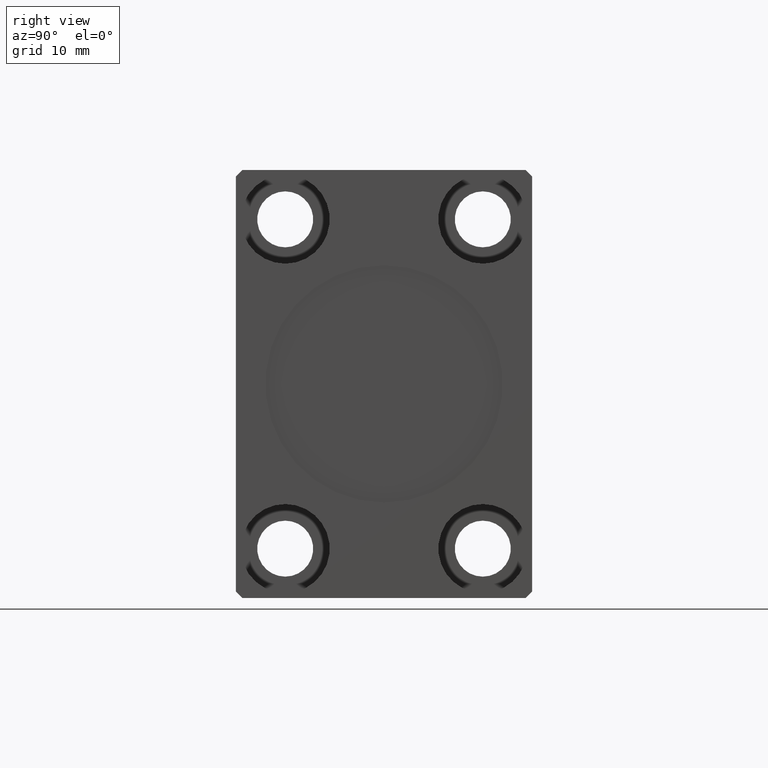
[diagram: clean part render]
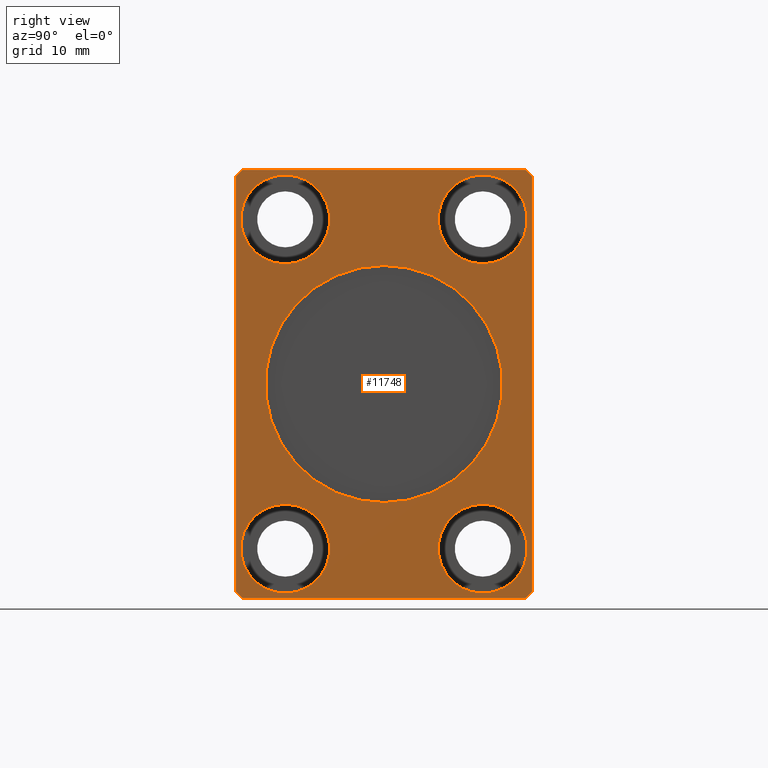
[diagram: same view with one face highlighted and labeled with its STEP entity id]
A machine part, right view. The second image highlights one B-rep face of the part: STEP entity #11748.
In plain terms, the highlighted planar face has unit normal (1, 0, 0).
Its self-contained STEP definition (entity closure, byte-faithful):
#8 = DIRECTION ( 'NONE',  ( -1.000000000000000000, -0.000000000000000000, -0.000000000000000000 ) ) ;
#1056 = CARTESIAN_POINT ( 'NONE',  ( 78.00000000000000000, -15.00000000000000000, -25.00000000000000000 ) ) ;
#1214 = ORIENTED_EDGE ( 'NONE', *, *, #21055, .F. ) ;
#1355 = EDGE_CURVE ( 'NONE', #30255, #4221, #12277, .T. ) ;
#1520 = CARTESIAN_POINT ( 'NONE',  ( 78.00000000000000000, 15.00000000000000000, 25.00000000000000000 ) ) ;
#1843 = CARTESIAN_POINT ( 'NONE',  ( 78.00000000000000000, -22.50000000000001421, -31.50000000000000711 ) ) ;
#1972 = AXIS2_PLACEMENT_3D ( 'NONE', #1056, #37010, #12196 ) ;
#2016 = LINE ( 'NONE', #22474, #16498 ) ;
#2454 = DIRECTION ( 'NONE',  ( 0.000000000000000000, 0.000000000000000000, 1.000000000000000000 ) ) ;
#2794 = EDGE_CURVE ( 'NONE', #6442, #8635, #35507, .T. ) ;
#3002 = VERTEX_POINT ( 'NONE', #11138 ) ;
#3448 = DIRECTION ( 'NONE',  ( 0.000000000000000000, 0.000000000000000000, -1.000000000000000000 ) ) ;
#4097 = ORIENTED_EDGE ( 'NONE', *, *, #17590, .T. ) ;
#4221 = VERTEX_POINT ( 'NONE', #14498 ) ;
#4805 = CIRCLE ( 'NONE', #10285, 6.749999999999992006 ) ;
#4833 = CARTESIAN_POINT ( 'NONE',  ( 78.00000000000000000, 15.00000000000000000, -25.00000000000000000 ) ) ;
#5067 = ORIENTED_EDGE ( 'NONE', *, *, #34118, .T. ) ;
#5296 = DIRECTION ( 'NONE',  ( 0.000000000000000000, -0.7071067811865474617, 0.7071067811865474617 ) ) ;
#6254 = DIRECTION ( 'NONE',  ( 0.000000000000000000, 5.507058653894625853E-17, -1.000000000000000000 ) ) ;
#6317 = CARTESIAN_POINT ( 'NONE',  ( 78.00000000000000000, -15.00000000000000000, 31.75000000000000711 ) ) ;
#6396 = EDGE_CURVE ( 'NONE', #8635, #9879, #34340, .T. ) ;
#6442 = VERTEX_POINT ( 'NONE', #7637 ) ;
#6882 = ORIENTED_EDGE ( 'NONE', *, *, #10151, .T. ) ;
#6982 = VERTEX_POINT ( 'NONE', #22987 ) ;
#7270 = CIRCLE ( 'NONE', #16231, 6.750000000000006217 ) ;
#7441 = VECTOR ( 'NONE', #38317, 1000.000000000000114 ) ;
#7637 = CARTESIAN_POINT ( 'NONE',  ( 78.00000000000000000, 21.49999999999999645, -32.50000000000000000 ) ) ;
#7774 = CIRCLE ( 'NONE', #11216, 6.749999999999999112 ) ;
#8095 = EDGE_CURVE ( 'NONE', #6982, #23971, #4805, .T. ) ;
#8382 = DIRECTION ( 'NONE',  ( 0.000000000000000000, 0.7071067811865451302, -0.7071067811865500152 ) ) ;
#8635 = VERTEX_POINT ( 'NONE', #12827 ) ;
#8746 = EDGE_LOOP ( 'NONE', ( #23442, #25642 ) ) ;
#8800 = CARTESIAN_POINT ( 'NONE',  ( 78.00000000000000000, -22.50000000000001421, -31.50000000000000711 ) ) ;
#9065 = ORIENTED_EDGE ( 'NONE', *, *, #38647, .F. ) ;
#9879 = VERTEX_POINT ( 'NONE', #31079 ) ;
#10151 = EDGE_CURVE ( 'NONE', #15960, #40841, #38598, .T. ) ;
#10263 = VERTEX_POINT ( 'NONE', #38547 ) ;
#10285 = AXIS2_PLACEMENT_3D ( 'NONE', #4833, #25494, #2454 ) ;
#10360 = ORIENTED_EDGE ( 'NONE', *, *, #39578, .T. ) ;
#10574 = DIRECTION ( 'NONE',  ( 0.000000000000000000, 0.000000000000000000, -1.000000000000000000 ) ) ;
#11138 = CARTESIAN_POINT ( 'NONE',  ( 78.00000000000000000, -15.00000000000000000, -18.25000000000000355 ) ) ;
#11216 = AXIS2_PLACEMENT_3D ( 'NONE', #13116, #23019, #36153 ) ;
#11543 = FACE_BOUND ( 'NONE', #19494, .T. ) ;
#11748 = ADVANCED_FACE ( 'NONE', ( #41047, #11543, #37164, #37807, #21456, #18232 ), #31365, .T. ) ;
#12196 = DIRECTION ( 'NONE',  ( 0.000000000000000000, 0.000000000000000000, -1.000000000000000000 ) ) ;
#12277 = LINE ( 'NONE', #35319, #27218 ) ;
#12733 = CARTESIAN_POINT ( 'NONE',  ( 78.00000000000000000, 15.00000000000000000, 25.00000000000000000 ) ) ;
#12827 = CARTESIAN_POINT ( 'NONE',  ( 78.00000000000000000, 22.49999999999999645, -31.50000000000000000 ) ) ;
#12898 = EDGE_CURVE ( 'NONE', #39018, #6442, #2016, .T. ) ;
#13074 = EDGE_CURVE ( 'NONE', #10263, #30042, #15175, .T. ) ;
#13116 = CARTESIAN_POINT ( 'NONE',  ( 78.00000000000000000, -15.00000000000000000, -25.00000000000000000 ) ) ;
#13677 = CARTESIAN_POINT ( 'NONE',  ( 78.00000000000000000, -15.00000000000000000, 25.00000000000000000 ) ) ;
#13796 = EDGE_LOOP ( 'NONE', ( #9065, #22780 ) ) ;
#13811 = CARTESIAN_POINT ( 'NONE',  ( 78.00000000000000000, 0.000000000000000000, 0.000000000000000000 ) ) ;
#14331 = AXIS2_PLACEMENT_3D ( 'NONE', #22510, #31786, #35639 ) ;
#14332 = CARTESIAN_POINT ( 'NONE',  ( 78.00000000000000000, 15.00000000000000000, -31.74999999999999289 ) ) ;
#14498 = CARTESIAN_POINT ( 'NONE',  ( 78.00000000000000000, -21.50000000000001421, 32.50000000000000000 ) ) ;
#14783 = CARTESIAN_POINT ( 'NONE',  ( 78.00000000000000000, 22.49999999999999645, 31.50000000000000000 ) ) ;
#14990 = CARTESIAN_POINT ( 'NONE',  ( 78.00000000000000000, 0.000000000000000000, 0.000000000000000000 ) ) ;
#15043 = CIRCLE ( 'NONE', #1972, 6.749999999999999112 ) ;
#15060 = ORIENTED_EDGE ( 'NONE', *, *, #8095, .T. ) ;
#15175 = CIRCLE ( 'NONE', #41299, 6.750000000000015987 ) ;
#15960 = VERTEX_POINT ( 'NONE', #26706 ) ;
#16231 = AXIS2_PLACEMENT_3D ( 'NONE', #13677, #26814, #16917 ) ;
#16332 = CARTESIAN_POINT ( 'NONE',  ( 78.00000000000000000, 15.00000000000000000, 31.75000000000001421 ) ) ;
#16474 = AXIS2_PLACEMENT_3D ( 'NONE', #14990, #41255, #38022 ) ;
#16498 = VECTOR ( 'NONE', #18618, 1000.000000000000000 ) ;
#16917 = DIRECTION ( 'NONE',  ( 0.000000000000000000, 0.000000000000000000, 1.000000000000000000 ) ) ;
#17048 = CARTESIAN_POINT ( 'NONE',  ( 78.00000000000000000, 2.204364238465235428E-15, 18.00000000000000000 ) ) ;
#17590 = EDGE_CURVE ( 'NONE', #4221, #41457, #27640, .T. ) ;
#17649 = ORIENTED_EDGE ( 'NONE', *, *, #35482, .T. ) ;
#17787 = CARTESIAN_POINT ( 'NONE',  ( 78.00000000000000000, -15.00000000000000000, -31.75000000000000000 ) ) ;
#18232 = FACE_BOUND ( 'NONE', #8746, .T. ) ;
#18270 = DIRECTION ( 'NONE',  ( -1.000000000000000000, -0.000000000000000000, -0.000000000000000000 ) ) ;
#18618 = DIRECTION ( 'NONE',  ( 0.000000000000000000, 1.000000000000000000, 1.613696256722610912E-16 ) ) ;
#19127 = CARTESIAN_POINT ( 'NONE',  ( 78.00000000000000000, -22.50000000000001776, 31.50000000000000000 ) ) ;
#19323 = AXIS2_PLACEMENT_3D ( 'NONE', #26079, #8, #39212 ) ;
#19494 = EDGE_LOOP ( 'NONE', ( #6882, #17649 ) ) ;
#20060 = VECTOR ( 'NONE', #20540, 1000.000000000000114 ) ;
#20459 = EDGE_LOOP ( 'NONE', ( #33610, #15060 ) ) ;
#20540 = DIRECTION ( 'NONE',  ( 0.000000000000000000, -0.7071067811865474617, -0.7071067811865474617 ) ) ;
#20920 = DIRECTION ( 'NONE',  ( 1.000000000000000000, -0.000000000000000000, -0.000000000000000000 ) ) ;
#21055 = EDGE_CURVE ( 'NONE', #38411, #22085, #38029, .T. ) ;
#21348 = EDGE_CURVE ( 'NONE', #3002, #31266, #7774, .T. ) ;
#21456 = FACE_BOUND ( 'NONE', #13796, .T. ) ;
#21796 = ORIENTED_EDGE ( 'NONE', *, *, #12898, .T. ) ;
#21931 = VECTOR ( 'NONE', #8382, 1000.000000000000114 ) ;
#22085 = VERTEX_POINT ( 'NONE', #17048 ) ;
#22336 = CARTESIAN_POINT ( 'NONE',  ( 78.00000000000000000, 15.00000000000000000, -25.00000000000000000 ) ) ;
#22474 = CARTESIAN_POINT ( 'NONE',  ( 78.00000000000000000, -21.50000000000001776, -32.50000000000000711 ) ) ;
#22481 = VECTOR ( 'NONE', #5296, 1000.000000000000114 ) ;
#22510 = CARTESIAN_POINT ( 'NONE',  ( 78.00000000000000000, 0.000000000000000000, 0.000000000000000000 ) ) ;
#22538 = DIRECTION ( 'NONE',  ( 0.000000000000000000, 0.000000000000000000, 1.000000000000000000 ) ) ;
#22780 = ORIENTED_EDGE ( 'NONE', *, *, #21348, .F. ) ;
#22987 = CARTESIAN_POINT ( 'NONE',  ( 78.00000000000000000, 15.00000000000000000, -18.25000000000001066 ) ) ;
#23019 = DIRECTION ( 'NONE',  ( 1.000000000000000000, -0.000000000000000000, -0.000000000000000000 ) ) ;
#23442 = ORIENTED_EDGE ( 'NONE', *, *, #13074, .F. ) ;
#23609 = ORIENTED_EDGE ( 'NONE', *, *, #6396, .T. ) ;
#23822 = EDGE_CURVE ( 'NONE', #23971, #6982, #38089, .T. ) ;
#23971 = VERTEX_POINT ( 'NONE', #14332 ) ;
#24343 = AXIS2_PLACEMENT_3D ( 'NONE', #12733, #35565, #3448 ) ;
#24346 = DIRECTION ( 'NONE',  ( 0.000000000000000000, 0.000000000000000000, -1.000000000000000000 ) ) ;
#24527 = ORIENTED_EDGE ( 'NONE', *, *, #2794, .T. ) ;
#24677 = LINE ( 'NONE', #14783, #22481 ) ;
#24966 = LINE ( 'NONE', #8800, #21931 ) ;
#25128 = CIRCLE ( 'NONE', #24343, 6.750000000000015987 ) ;
#25411 = DIRECTION ( 'NONE',  ( 0.000000000000000000, -1.000000000000000000, 0.000000000000000000 ) ) ;
#25494 = DIRECTION ( 'NONE',  ( -1.000000000000000000, -0.000000000000000000, -0.000000000000000000 ) ) ;
#25642 = ORIENTED_EDGE ( 'NONE', *, *, #28986, .F. ) ;
#26079 = CARTESIAN_POINT ( 'NONE',  ( 78.00000000000000000, -15.00000000000000000, 25.00000000000000000 ) ) ;
#26394 = AXIS2_PLACEMENT_3D ( 'NONE', #22336, #18270, #22538 ) ;
#26706 = CARTESIAN_POINT ( 'NONE',  ( 78.00000000000000000, -15.00000000000000000, 18.24999999999999645 ) ) ;
#26814 = DIRECTION ( 'NONE',  ( -1.000000000000000000, -0.000000000000000000, -0.000000000000000000 ) ) ;
#27165 = EDGE_LOOP ( 'NONE', ( #29317, #27288, #4097, #5067, #10360, #21796, #24527, #23609 ) ) ;
#27212 = CARTESIAN_POINT ( 'NONE',  ( 78.00000000000000000, -21.50000000000001421, 32.50000000000000000 ) ) ;
#27218 = VECTOR ( 'NONE', #25411, 1000.000000000000000 ) ;
#27288 = ORIENTED_EDGE ( 'NONE', *, *, #1355, .T. ) ;
#27640 = LINE ( 'NONE', #27212, #20060 ) ;
#27917 = VECTOR ( 'NONE', #6254, 1000.000000000000000 ) ;
#28986 = EDGE_CURVE ( 'NONE', #30042, #10263, #25128, .T. ) ;
#29100 = LINE ( 'NONE', #42635, #27917 ) ;
#29317 = ORIENTED_EDGE ( 'NONE', *, *, #37781, .T. ) ;
#29553 = VECTOR ( 'NONE', #37128, 1000.000000000000000 ) ;
#30042 = VERTEX_POINT ( 'NONE', #16332 ) ;
#30255 = VERTEX_POINT ( 'NONE', #30326 ) ;
#30326 = CARTESIAN_POINT ( 'NONE',  ( 78.00000000000000000, 21.49999999999999645, 32.50000000000000000 ) ) ;
#31079 = CARTESIAN_POINT ( 'NONE',  ( 78.00000000000000000, 22.49999999999999645, 31.50000000000000000 ) ) ;
#31122 = CARTESIAN_POINT ( 'NONE',  ( 78.00000000000000000, 22.49999999999999645, -31.50000000000000000 ) ) ;
#31266 = VERTEX_POINT ( 'NONE', #17787 ) ;
#31365 = PLANE ( 'NONE',  #16474 ) ;
#31708 = VERTEX_POINT ( 'NONE', #1843 ) ;
#31786 = DIRECTION ( 'NONE',  ( 1.000000000000000000, 0.000000000000000000, 0.000000000000000000 ) ) ;
#32274 = CARTESIAN_POINT ( 'NONE',  ( 78.00000000000000000, 21.49999999999999645, -32.50000000000000000 ) ) ;
#33610 = ORIENTED_EDGE ( 'NONE', *, *, #23822, .T. ) ;
#33743 = CARTESIAN_POINT ( 'NONE',  ( 78.00000000000000000, -21.50000000000001776, -32.50000000000000711 ) ) ;
#33913 = AXIS2_PLACEMENT_3D ( 'NONE', #13811, #40073, #10574 ) ;
#34118 = EDGE_CURVE ( 'NONE', #41457, #31708, #29100, .T. ) ;
#34340 = LINE ( 'NONE', #31122, #29553 ) ;
#35319 = CARTESIAN_POINT ( 'NONE',  ( 78.00000000000000000, 21.49999999999999645, 32.50000000000000000 ) ) ;
#35482 = EDGE_CURVE ( 'NONE', #40841, #15960, #7270, .T. ) ;
#35507 = LINE ( 'NONE', #32274, #7441 ) ;
#35565 = DIRECTION ( 'NONE',  ( 1.000000000000000000, -0.000000000000000000, -0.000000000000000000 ) ) ;
#35639 = DIRECTION ( 'NONE',  ( 0.000000000000000000, 0.000000000000000000, -1.000000000000000000 ) ) ;
#35750 = CARTESIAN_POINT ( 'NONE',  ( 78.00000000000000000, 0.000000000000000000, -18.00000000000000000 ) ) ;
#36153 = DIRECTION ( 'NONE',  ( 0.000000000000000000, 0.000000000000000000, -1.000000000000000000 ) ) ;
#37010 = DIRECTION ( 'NONE',  ( 1.000000000000000000, -0.000000000000000000, -0.000000000000000000 ) ) ;
#37128 = DIRECTION ( 'NONE',  ( 0.000000000000000000, 0.000000000000000000, 1.000000000000000000 ) ) ;
#37164 = FACE_BOUND ( 'NONE', #20459, .T. ) ;
#37781 = EDGE_CURVE ( 'NONE', #9879, #30255, #24677, .T. ) ;
#37807 = FACE_OUTER_BOUND ( 'NONE', #27165, .T. ) ;
#37953 = EDGE_CURVE ( 'NONE', #22085, #38411, #41039, .T. ) ;
#38022 = DIRECTION ( 'NONE',  ( 0.000000000000000000, 0.000000000000000000, -1.000000000000000000 ) ) ;
#38029 = CIRCLE ( 'NONE', #33913, 18.00000000000000000 ) ;
#38089 = CIRCLE ( 'NONE', #26394, 6.749999999999992006 ) ;
#38317 = DIRECTION ( 'NONE',  ( 0.000000000000000000, 0.7071067811865474617, 0.7071067811865474617 ) ) ;
#38411 = VERTEX_POINT ( 'NONE', #35750 ) ;
#38547 = CARTESIAN_POINT ( 'NONE',  ( 78.00000000000000000, 15.00000000000000000, 18.24999999999998579 ) ) ;
#38598 = CIRCLE ( 'NONE', #19323, 6.750000000000006217 ) ;
#38647 = EDGE_CURVE ( 'NONE', #31266, #3002, #15043, .T. ) ;
#39018 = VERTEX_POINT ( 'NONE', #33743 ) ;
#39212 = DIRECTION ( 'NONE',  ( 0.000000000000000000, 0.000000000000000000, 1.000000000000000000 ) ) ;
#39578 = EDGE_CURVE ( 'NONE', #31708, #39018, #24966, .T. ) ;
#40073 = DIRECTION ( 'NONE',  ( 1.000000000000000000, 0.000000000000000000, 0.000000000000000000 ) ) ;
#40176 = ORIENTED_EDGE ( 'NONE', *, *, #37953, .F. ) ;
#40841 = VERTEX_POINT ( 'NONE', #6317 ) ;
#41039 = CIRCLE ( 'NONE', #14331, 18.00000000000000000 ) ;
#41045 = EDGE_LOOP ( 'NONE', ( #1214, #40176 ) ) ;
#41047 = FACE_BOUND ( 'NONE', #41045, .T. ) ;
#41255 = DIRECTION ( 'NONE',  ( 1.000000000000000000, 0.000000000000000000, 0.000000000000000000 ) ) ;
#41299 = AXIS2_PLACEMENT_3D ( 'NONE', #1520, #20920, #24346 ) ;
#41457 = VERTEX_POINT ( 'NONE', #19127 ) ;
#42635 = CARTESIAN_POINT ( 'NONE',  ( 78.00000000000000000, -22.50000000000001776, 31.50000000000000000 ) ) ;